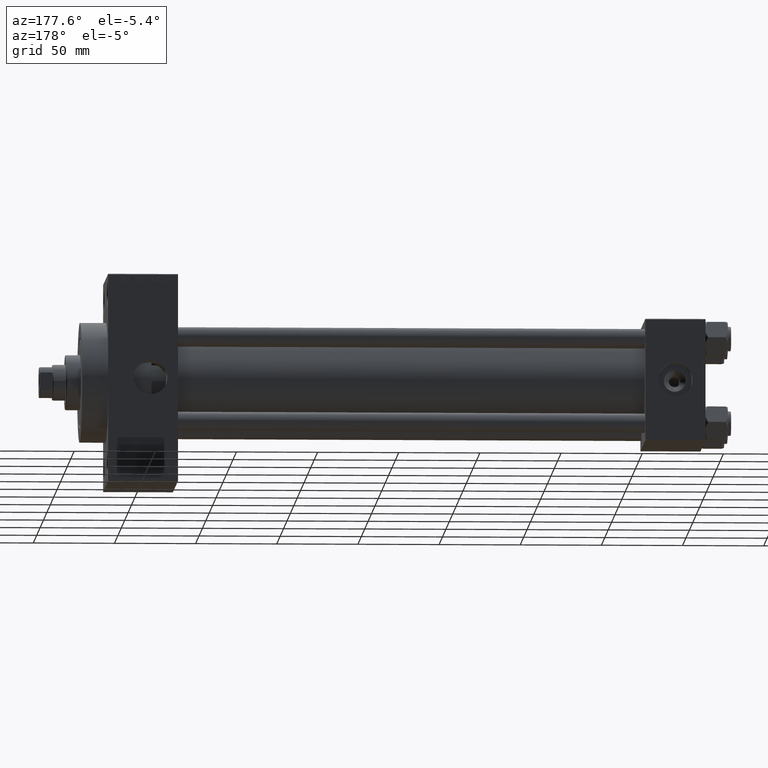
[diagram: clean part render]
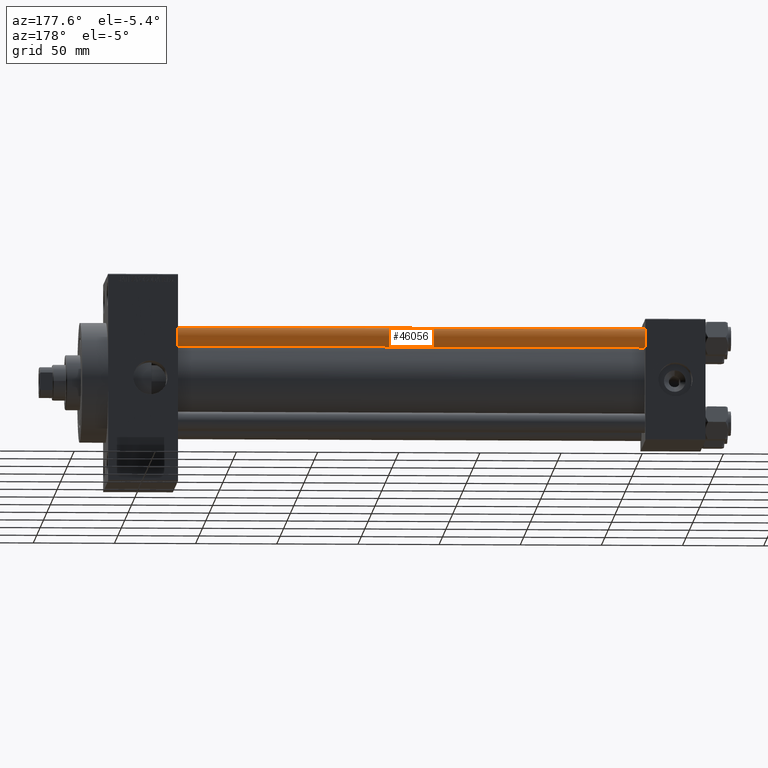
[diagram: same view with one face highlighted and labeled with its STEP entity id]
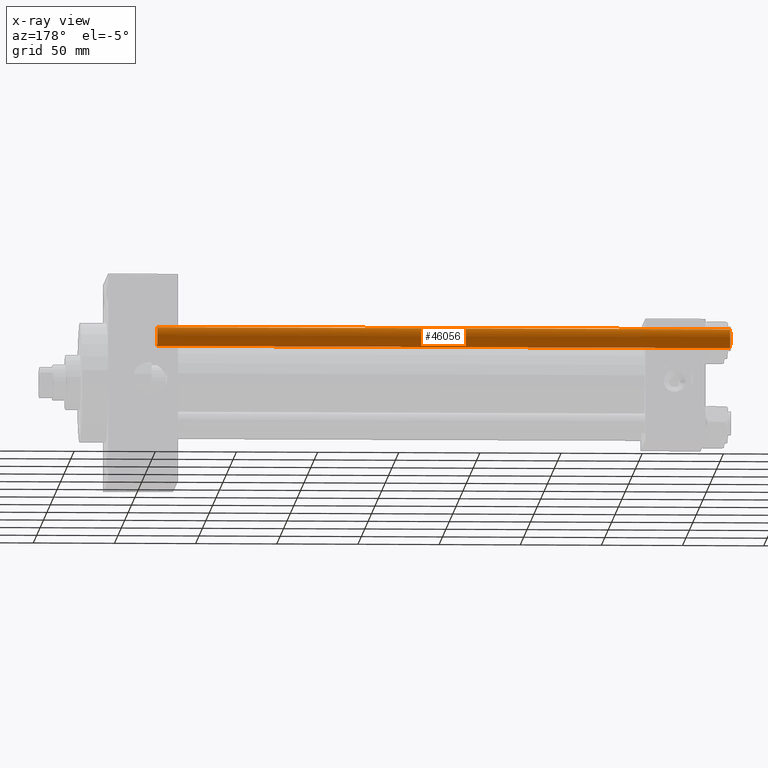
[diagram: x-ray of the same camera — body ghosted, the highlighted face saturated]
A machine part, auxiliary view. The second image highlights one B-rep face of the part: STEP entity #46056.
The next image is the same camera in x-ray: the body ghosted, the highlighted face saturated — about 0% of this face is hidden behind the body in this view.
In plain terms, the highlighted cylindrical surface (edge-blend (fillet) strip) has radius 6 mm, axis along (-1, -0, 0).
Its self-contained STEP definition (entity closure, byte-faithful):
#192 = DIRECTION ( 'NONE',  ( 0.000000000000000000, 0.000000000000000000, -1.000000000000000000 ) ) ;
#912 = DIRECTION ( 'NONE',  ( -0.000000000000000000, -0.000000000000000000, -1.000000000000000000 ) ) ;
#1712 = CARTESIAN_POINT ( 'NONE',  ( -6.000000000000000888, 0.000000000000000000, 354.0000000000000000 ) ) ;
#4819 = CARTESIAN_POINT ( 'NONE',  ( 6.000000000000000888, 7.347880794884120722E-16, 353.5000000000000000 ) ) ;
#8612 = AXIS2_PLACEMENT_3D ( 'NONE', #10998, #192, #47438 ) ;
#10998 = CARTESIAN_POINT ( 'NONE',  ( 0.000000000000000000, 0.000000000000000000, 353.5000000000000000 ) ) ;
#12201 = VERTEX_POINT ( 'NONE', #46857 ) ;
#13018 = EDGE_LOOP ( 'NONE', ( #34286, #22624, #31329, #33536 ) ) ;
#14117 = EDGE_CURVE ( 'NONE', #47409, #12201, #45579, .T. ) ;
#16642 = AXIS2_PLACEMENT_3D ( 'NONE', #43138, #31178, #17507 ) ;
#17049 = AXIS2_PLACEMENT_3D ( 'NONE', #21425, #38301, #36054 ) ;
#17507 = DIRECTION ( 'NONE',  ( -1.000000000000000000, 0.000000000000000000, 0.000000000000000000 ) ) ;
#19175 = VECTOR ( 'NONE', #33829, 1000.000000000000000 ) ;
#20117 = VERTEX_POINT ( 'NONE', #4819 ) ;
#21425 = CARTESIAN_POINT ( 'NONE',  ( 0.000000000000000000, 0.000000000000000000, 0.5000000000000559552 ) ) ;
#22286 = VECTOR ( 'NONE', #912, 1000.000000000000000 ) ;
#22624 = ORIENTED_EDGE ( 'NONE', *, *, #24400, .T. ) ;
#24400 = EDGE_CURVE ( 'NONE', #20117, #30104, #40946, .T. ) ;
#30104 = VERTEX_POINT ( 'NONE', #33743 ) ;
#31178 = DIRECTION ( 'NONE',  ( -0.000000000000000000, -0.000000000000000000, -1.000000000000000000 ) ) ;
#31329 = ORIENTED_EDGE ( 'NONE', *, *, #31872, .T. ) ;
#31655 = EDGE_CURVE ( 'NONE', #47409, #20117, #39231, .T. ) ;
#31872 = EDGE_CURVE ( 'NONE', #30104, #12201, #37730, .T. ) ;
#33536 = ORIENTED_EDGE ( 'NONE', *, *, #14117, .F. ) ;
#33743 = CARTESIAN_POINT ( 'NONE',  ( 6.000000000000000888, 7.347880794884120722E-16, 0.5000000000000559552 ) ) ;
#33745 = CARTESIAN_POINT ( 'NONE',  ( 6.000000000000000888, 7.347880794884120722E-16, 354.0000000000000000 ) ) ;
#33829 = DIRECTION ( 'NONE',  ( -0.000000000000000000, -0.000000000000000000, -1.000000000000000000 ) ) ;
#34286 = ORIENTED_EDGE ( 'NONE', *, *, #31655, .T. ) ;
#35575 = CARTESIAN_POINT ( 'NONE',  ( -6.000000000000000888, 0.000000000000000000, 353.5000000000000000 ) ) ;
#36054 = DIRECTION ( 'NONE',  ( 1.000000000000000000, 0.000000000000000000, 0.000000000000000000 ) ) ;
#37730 = CIRCLE ( 'NONE', #17049, 6.000000000000000888 ) ;
#38301 = DIRECTION ( 'NONE',  ( -0.000000000000000000, -0.000000000000000000, 1.000000000000000000 ) ) ;
#39231 = CIRCLE ( 'NONE', #8612, 6.000000000000000888 ) ;
#40946 = LINE ( 'NONE', #33745, #22286 ) ;
#43138 = CARTESIAN_POINT ( 'NONE',  ( 0.000000000000000000, 0.000000000000000000, 354.0000000000000000 ) ) ;
#45579 = LINE ( 'NONE', #1712, #19175 ) ;
#45816 = FACE_OUTER_BOUND ( 'NONE', #13018, .T. ) ;
#46056 = ADVANCED_FACE ( 'NONE', ( #45816 ), #46514, .T. ) ;
#46514 = CYLINDRICAL_SURFACE ( 'NONE', #16642, 6.000000000000000888 ) ;
#46857 = CARTESIAN_POINT ( 'NONE',  ( -6.000000000000000888, 0.000000000000000000, 0.5000000000000559552 ) ) ;
#47409 = VERTEX_POINT ( 'NONE', #35575 ) ;
#47438 = DIRECTION ( 'NONE',  ( 1.000000000000000000, 0.000000000000000000, 0.000000000000000000 ) ) ;